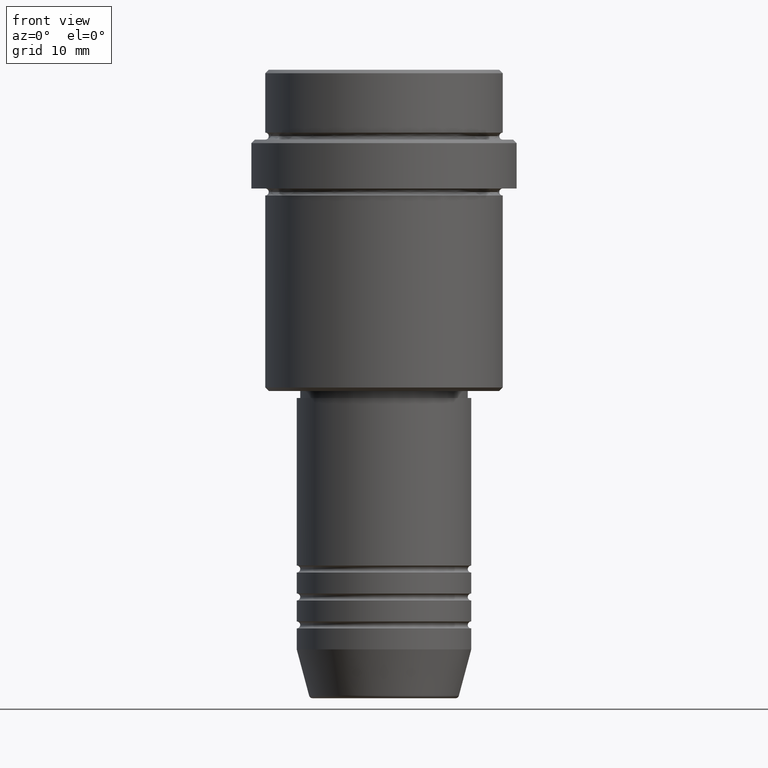
[diagram: clean part render]
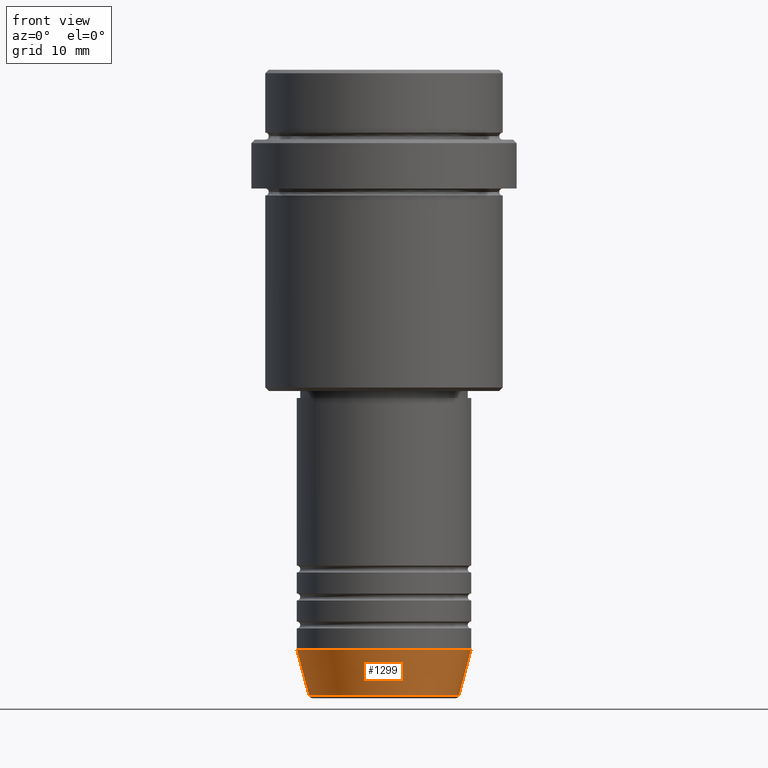
[diagram: same view with one face highlighted and labeled with its STEP entity id]
A machine part, front view. The second image highlights one B-rep face of the part: STEP entity #1299.
In plain terms, the highlighted conical surface has half-angle 15 deg.
Its self-contained STEP definition (entity closure, byte-faithful):
#20 = EDGE_CURVE ( 'NONE', #339, #826, #679, .T. ) ;
#76 = CARTESIAN_POINT ( 'NONE',  ( 0.000000000000000000, 0.000000000000000000, -83.00000000000000000 ) ) ;
#101 = FACE_OUTER_BOUND ( 'NONE', #286, .T. ) ;
#144 = DIRECTION ( 'NONE',  ( 0.2588190451025213501, 0.000000000000000000, 0.9659258262890680902 ) ) ;
#184 = VECTOR ( 'NONE', #1145, 1000.000000000000000 ) ;
#235 = VERTEX_POINT ( 'NONE', #1411 ) ;
#286 = EDGE_LOOP ( 'NONE', ( #837, #882, #1340, #328 ) ) ;
#328 = ORIENTED_EDGE ( 'NONE', *, *, #20, .F. ) ;
#339 = VERTEX_POINT ( 'NONE', #910 ) ;
#343 = DIRECTION ( 'NONE',  ( -0.000000000000000000, -0.000000000000000000, 1.000000000000000000 ) ) ;
#347 = CIRCLE ( 'NONE', #1195, 10.72365507213719127 ) ;
#374 = CARTESIAN_POINT ( 'NONE',  ( 12.50000000000000000, 0.000000000000000000, -83.00000000000000000 ) ) ;
#381 = LINE ( 'NONE', #374, #1375 ) ;
#432 = CARTESIAN_POINT ( 'NONE',  ( 0.000000000000000000, 0.000000000000000000, -89.62940952255125637 ) ) ;
#499 = DIRECTION ( 'NONE',  ( -0.000000000000000000, -0.000000000000000000, 1.000000000000000000 ) ) ;
#540 = EDGE_CURVE ( 'NONE', #235, #339, #1360, .T. ) ;
#542 = DIRECTION ( 'NONE',  ( 1.000000000000000000, 0.000000000000000000, 0.000000000000000000 ) ) ;
#668 = CARTESIAN_POINT ( 'NONE',  ( 0.000000000000000000, 0.000000000000000000, -83.00000000000000000 ) ) ;
#679 = CIRCLE ( 'NONE', #1416, 12.50000000000000000 ) ;
#747 = VERTEX_POINT ( 'NONE', #1038 ) ;
#756 = CONICAL_SURFACE ( 'NONE', #1310, 12.50000000000000000, 0.2617993877991500740 ) ;
#815 = CARTESIAN_POINT ( 'NONE',  ( 12.50000000000000000, 0.000000000000000000, -83.00000000000000000 ) ) ;
#816 = EDGE_CURVE ( 'NONE', #747, #826, #381, .T. ) ;
#826 = VERTEX_POINT ( 'NONE', #815 ) ;
#837 = ORIENTED_EDGE ( 'NONE', *, *, #540, .F. ) ;
#882 = ORIENTED_EDGE ( 'NONE', *, *, #1294, .T. ) ;
#910 = CARTESIAN_POINT ( 'NONE',  ( -12.50000000000000000, 1.530808498934191521E-15, -83.00000000000000000 ) ) ;
#994 = DIRECTION ( 'NONE',  ( 1.000000000000000000, 0.000000000000000000, 0.000000000000000000 ) ) ;
#1038 = CARTESIAN_POINT ( 'NONE',  ( 10.72365507213719127, 0.000000000000000000, -89.62940952255125637 ) ) ;
#1065 = DIRECTION ( 'NONE',  ( 1.000000000000000000, 0.000000000000000000, 0.000000000000000000 ) ) ;
#1145 = DIRECTION ( 'NONE',  ( -0.2588190451025213501, 3.169619151431772337E-17, 0.9659258262890680902 ) ) ;
#1168 = CARTESIAN_POINT ( 'NONE',  ( -12.50000000000000000, 1.530808498934191521E-15, -83.00000000000000000 ) ) ;
#1195 = AXIS2_PLACEMENT_3D ( 'NONE', #432, #1324, #994 ) ;
#1294 = EDGE_CURVE ( 'NONE', #235, #747, #347, .T. ) ;
#1299 = ADVANCED_FACE ( 'NONE', ( #101 ), #756, .T. ) ;
#1310 = AXIS2_PLACEMENT_3D ( 'NONE', #668, #343, #542 ) ;
#1324 = DIRECTION ( 'NONE',  ( -0.000000000000000000, -0.000000000000000000, 1.000000000000000000 ) ) ;
#1340 = ORIENTED_EDGE ( 'NONE', *, *, #816, .T. ) ;
#1360 = LINE ( 'NONE', #1168, #184 ) ;
#1375 = VECTOR ( 'NONE', #144, 1000.000000000000000 ) ;
#1411 = CARTESIAN_POINT ( 'NONE',  ( -10.72365507213719127, 1.422038742429750516E-15, -89.62940952255125637 ) ) ;
#1416 = AXIS2_PLACEMENT_3D ( 'NONE', #76, #499, #1065 ) ;